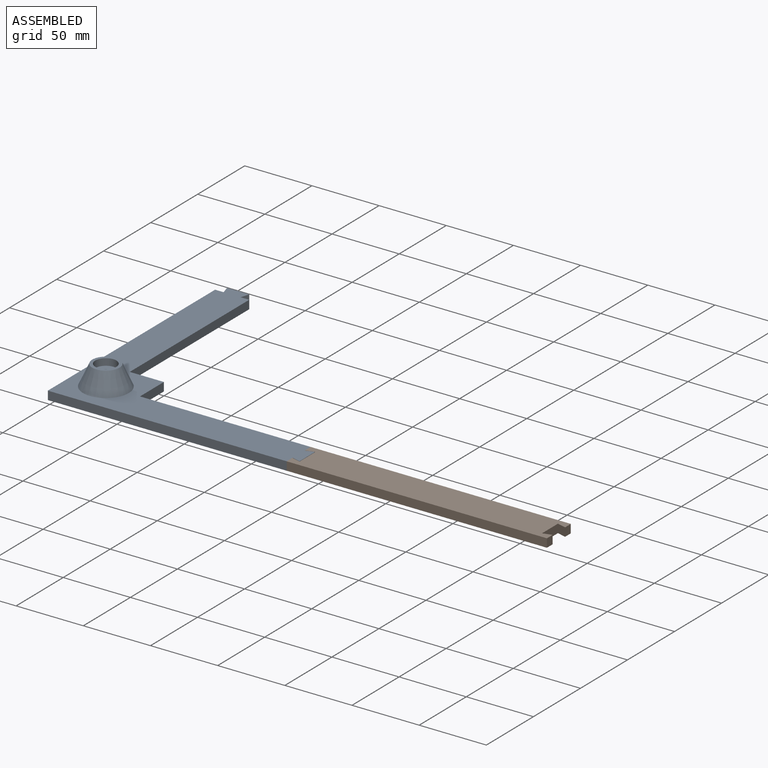
[diagram: assembled view]
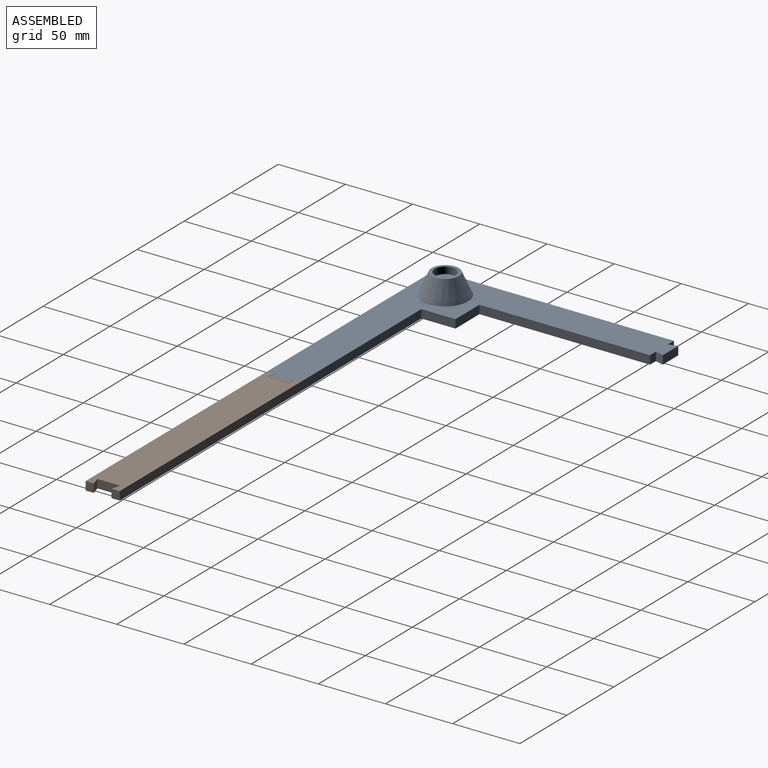
[diagram: assembled view, second angle]
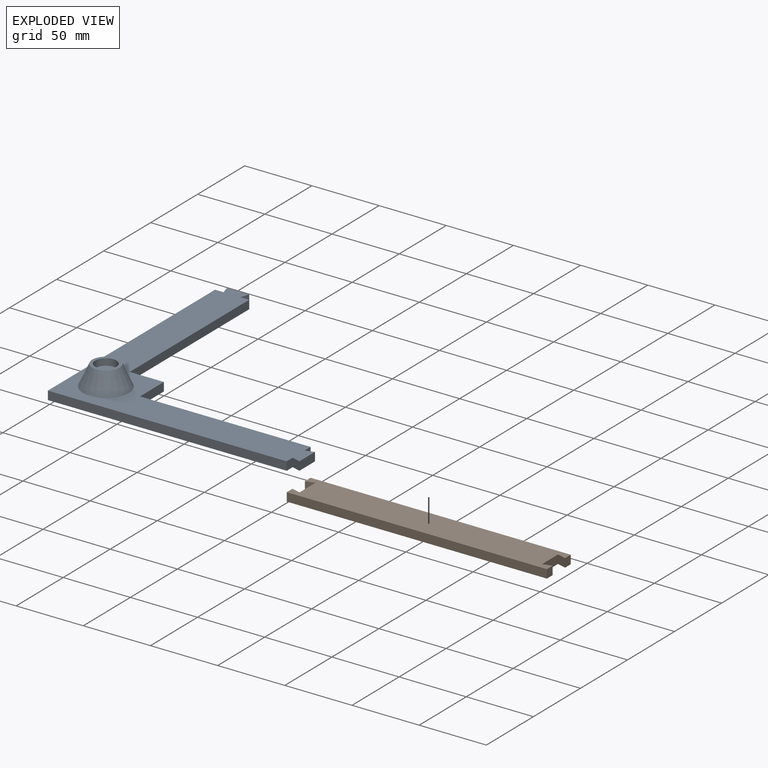
[diagram: exploded view]
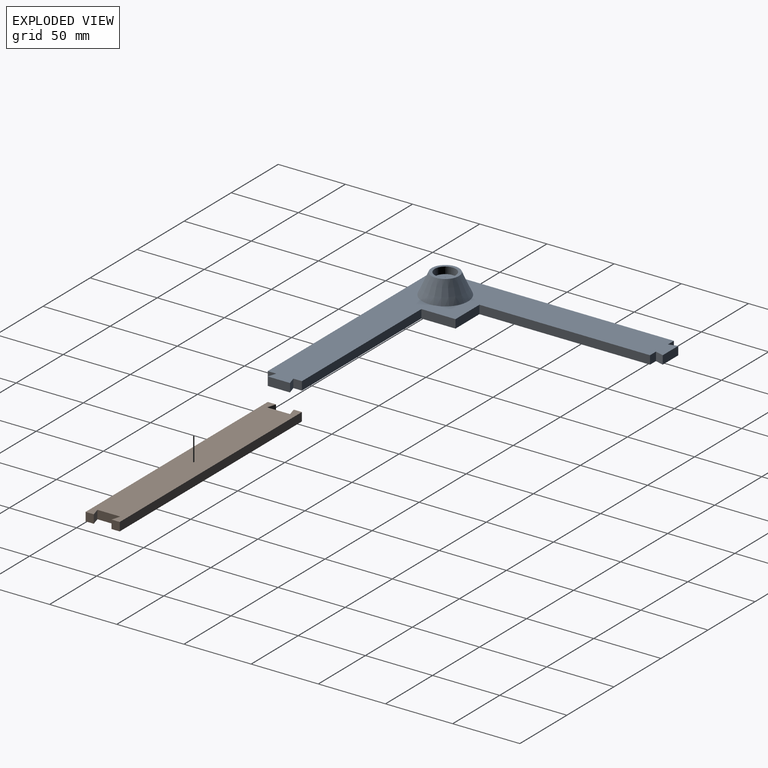
[diagram: exploded view, second angle]
ASSEMBLY  parts=2 mates=3
PART A: 24 faces, bbox 184.2x184.2x21.6 mm
  f0: plane 25.4x6.35mm, normal (1,0,0), area 161.3mm2, adj f1,f4,f5,f17
  f1: plane 25.4x6.35mm, normal (0,1,0), area 161.3mm2, adj f0,f4,f5,f18
  f2: plane 177.8x6.35mm, normal (-1,0,0), area 1129mm2, adj f3,f4,f5,f23
  f3: plane 177.8x6.35mm, normal (0,-1,0), area 1129mm2, adj f2,f4,f5,f12
  f4: plane 184.15x184.15mm, normal (0,0,1), area 8307.9mm2, adj f0,f1,f2,f3,f6,f12,f13,f14
  f5: plane 184.15x184.15mm, normal (0,0,-1), area 9217.7mm2, adj f0,f1,f2,f3,f12,f13,f14,f15
  f6: cone r=10.16mm half-angle=24.2deg, axis (0,0,-1), area 1426.9mm2, adj f4,f7
  f7: plane 20.32x20.32mm, normal (0,0,1), area 129.5mm2, adj f6,f8
  f8: cylinder r=7.87mm len=15.75mm, axis (0,0,-1), area 251.3mm2, adj f7,f9
  f9: plane 15.75x15.75mm, normal (0,0,1), area 163.1mm2, adj f8,f10
  f10: cylinder r=3.17mm len=7.62mm, axis (0,0,-1), area 152mm2, adj f9,f11
  f11: plane 6.35x6.35mm, normal (0,0,1), area 31.7mm2, adj f10
  f12: plane 6.35x6.35mm, normal (1,0,0), area 40.3mm2, adj f3,f4,f5,f13
  f13: plane 6.35x6.35mm, normal (-0.29,-0.96,0), area 42.1mm2, adj f4,f5,f12,f14
  f14: plane 16.51x6.35mm, normal (1,0,0), area 104.8mm2, adj f4,f5,f13,f15
  f15: plane 6.35x6.35mm, normal (-0.29,0.96,0), area 42.1mm2, adj f4,f5,f14,f16
  f16: plane 6.35x6.35mm, normal (1,0,0), area 40.3mm2, adj f4,f5,f15,f17
  f17: plane 127x6.35mm, normal (0,1,0), area 806.5mm2, adj f0,f4,f5,f16
  f18: plane 127x6.35mm, normal (1,0,0), area 806.5mm2, adj f1,f4,f5,f19
  f19: plane 6.35x6.35mm, normal (0,1,0), area 40.3mm2, adj f4,f5,f18,f20
  f20: plane 6.35x6.35mm, normal (0.96,-0.29,0), area 42.1mm2, adj f4,f5,f19,f21
  f21: plane 16.51x6.35mm, normal (0,1,0), area 104.8mm2, adj f4,f5,f20,f22
  f22: plane 6.35x6.35mm, normal (-0.96,-0.29,0), area 42.1mm2, adj f4,f5,f21,f23
  f23: plane 6.35x6.35mm, normal (0,1,0), area 40.3mm2, adj f2,f4,f5,f22
PART B: 14 faces, bbox 193.7x25.4x6.4 mm
  f0: plane 193.68x6.35mm, normal (0,-1,0), area 1229.8mm2, adj f1,f11,f12,f13
  f1: plane 6.35x6.1mm, normal (1,0,0), area 38.7mm2, adj f0,f2,f12,f13
  f2: plane 6.6x6.35mm, normal (-0.28,0.96,0), area 43.6mm2, adj f1,f3,f12,f13
  f3: plane 17.02x6.35mm, normal (1,0,0), area 108.1mm2, adj f2,f4,f12,f13
  f4: plane 6.6x6.35mm, normal (-0.28,-0.96,0), area 43.6mm2, adj f3,f5,f12,f13
  f5: plane 6.35x6.1mm, normal (1,0,0), area 38.7mm2, adj f4,f6,f12,f13
  f6: plane 193.68x6.35mm, normal (0,1,0), area 1229.8mm2, adj f5,f7,f12,f13
  f7: plane 6.35x6.1mm, normal (-1,0,0), area 38.7mm2, adj f6,f8,f12,f13
  f8: plane 6.6x6.35mm, normal (0.28,-0.96,0), area 43.6mm2, adj f7,f9,f12,f13
  f9: plane 17.02x6.35mm, normal (-1,0,0), area 108.1mm2, adj f8,f10,f12,f13
  f10: plane 6.6x6.35mm, normal (0.28,0.96,0), area 43.6mm2, adj f9,f11,f12,f13
  f11: plane 6.35x6.1mm, normal (-1,0,0), area 38.7mm2, adj f0,f10,f12,f13
  f12: plane 193.68x25.4mm, normal (0,0,1), area 4719.7mm2, adj f0,f1,f2,f3,f4,f5,f6,f7
  f13: plane 193.68x25.4mm, normal (0,0,-1), area 4719.7mm2, adj f0,f1,f2,f3,f4,f5,f6,f7
PLACE A t=(4.13,82.31,5.89)mm fixed
PLACE B t=(156.53,56.91,5.89)mm
MATE planar B.f12 <-> A.f4  axis (0,0,1) through (253.37,69.61,12.24)mm
MATE planar B.f11 <-> A.f12  axis (-1,0,0) through (156.53,59.95,9.07)mm
MATE planar B.f0 <-> A.f3  axis (0,-1,0) through (156.53,56.91,5.89)mm
